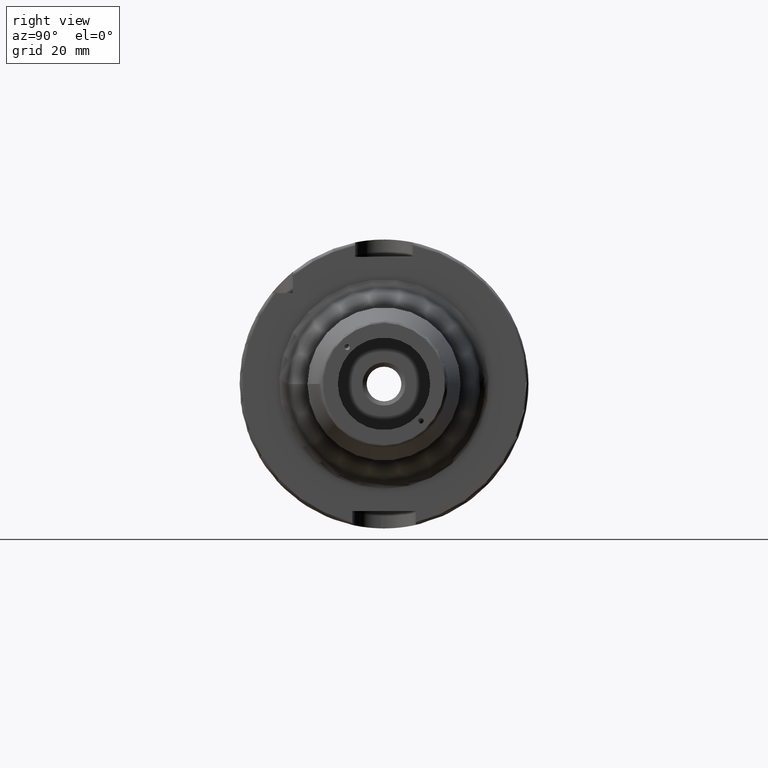
[diagram: clean part render]
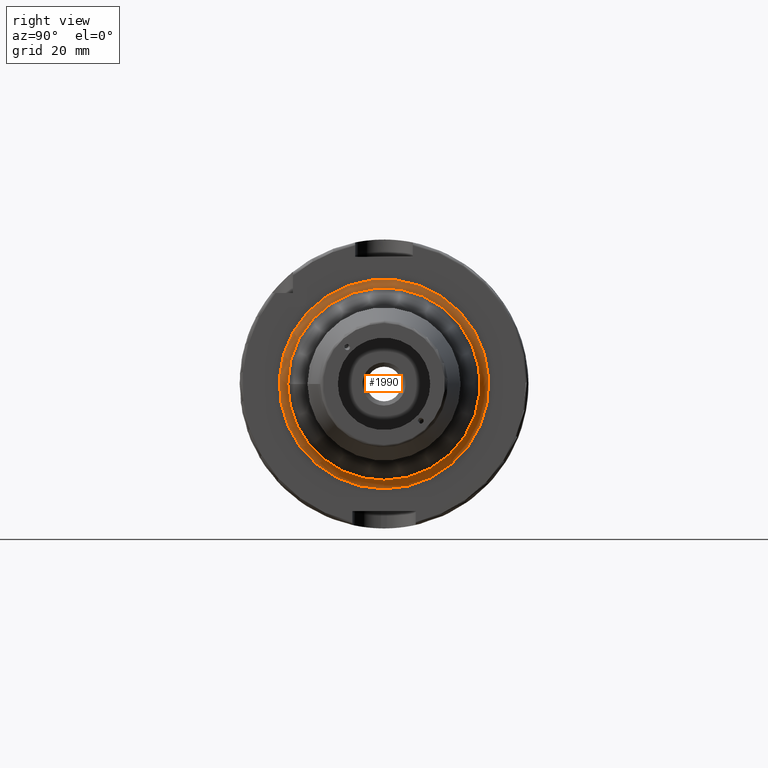
[diagram: same view with one face highlighted and labeled with its STEP entity id]
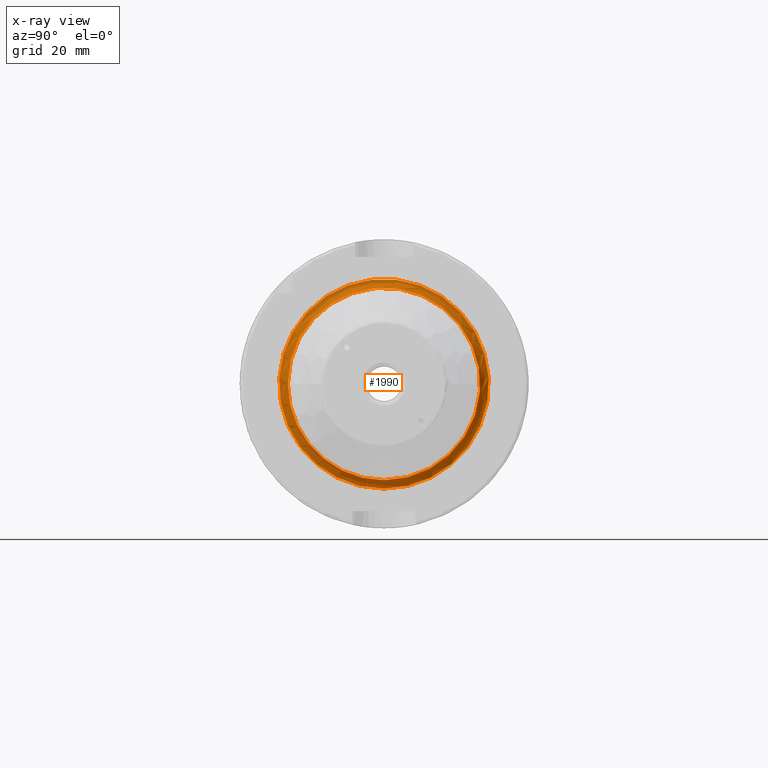
[diagram: x-ray of the same camera — body ghosted, the highlighted face saturated]
A machine part, right view. The second image highlights one B-rep face of the part: STEP entity #1990.
The next image is the same camera in x-ray: the body ghosted, the highlighted face saturated — about 0% of this face is hidden behind the body in this view.
In plain terms, the highlighted toroidal blend (fillet) surface has major radius 36.2754 mm and minor (blend) radius 3 mm.
Its self-contained STEP definition (entity closure, byte-faithful):
#137=TOROIDAL_SURFACE('',#2143,36.2754427832707,3.);
#215=FACE_OUTER_BOUND('',#338,.T.);
#338=EDGE_LOOP('',(#1359,#1360,#1361,#1362,#1363));
#685=CIRCLE('',#2144,33.3046385770459);
#686=CIRCLE('',#2145,3.);
#687=CIRCLE('',#2146,36.2754427832707);
#688=CIRCLE('',#2147,33.3046385770459);
#819=VERTEX_POINT('',#3048);
#820=VERTEX_POINT('',#3049);
#821=VERTEX_POINT('',#3051);
#1029=EDGE_CURVE('',#819,#820,#685,.T.);
#1030=EDGE_CURVE('',#820,#821,#686,.T.);
#1031=EDGE_CURVE('',#821,#821,#687,.T.);
#1032=EDGE_CURVE('',#820,#819,#688,.T.);
#1359=ORIENTED_EDGE('',*,*,#1029,.T.);
#1360=ORIENTED_EDGE('',*,*,#1030,.T.);
#1361=ORIENTED_EDGE('',*,*,#1031,.T.);
#1362=ORIENTED_EDGE('',*,*,#1030,.F.);
#1363=ORIENTED_EDGE('',*,*,#1032,.T.);
#1990=ADVANCED_FACE('',(#215),#137,.F.);
#2143=AXIS2_PLACEMENT_3D('',#3047,#2426,#2427);
#2144=AXIS2_PLACEMENT_3D('',#3050,#2428,#2429);
#2145=AXIS2_PLACEMENT_3D('',#3052,#2430,#2431);
#2146=AXIS2_PLACEMENT_3D('',#3053,#2432,#2433);
#2147=AXIS2_PLACEMENT_3D('',#3054,#2434,#2435);
#2426=DIRECTION('center_axis',(-1.,0.,0.));
#2427=DIRECTION('ref_axis',(0.,0.,1.));
#2428=DIRECTION('center_axis',(-1.,0.,0.));
#2429=DIRECTION('ref_axis',(0.,-1.,-1.22464679914735E-16));
#2430=DIRECTION('center_axis',(0.,-1.,1.22464679914735E-16));
#2431=DIRECTION('ref_axis',(0.,-1.22464679914735E-16,-1.));
#2432=DIRECTION('center_axis',(1.,0.,0.));
#2433=DIRECTION('ref_axis',(0.,-1.,-1.22464679914735E-16));
#2434=DIRECTION('center_axis',(-1.,0.,0.));
#2435=DIRECTION('ref_axis',(0.,-1.,-1.22464679914735E-16));
#3047=CARTESIAN_POINT('Origin',(32.,0.,0.));
#3048=CARTESIAN_POINT('',(31.5824806971198,-33.3046385770459,-4.07864190301388E-15));
#3049=CARTESIAN_POINT('',(31.5824806971198,-4.07864190301388E-15,-33.3046385770459));
#3050=CARTESIAN_POINT('Origin',(31.5824806971198,0.,-7.39557098644699E-31));
#3051=CARTESIAN_POINT('',(29.,-4.44246048921854E-15,-36.2754427832707));
#3052=CARTESIAN_POINT('Origin',(32.,-4.44246048921854E-15,-36.2754427832707));
#3053=CARTESIAN_POINT('Origin',(29.,0.,0.));
#3054=CARTESIAN_POINT('Origin',(31.5824806971198,0.,-7.39557098644699E-31));